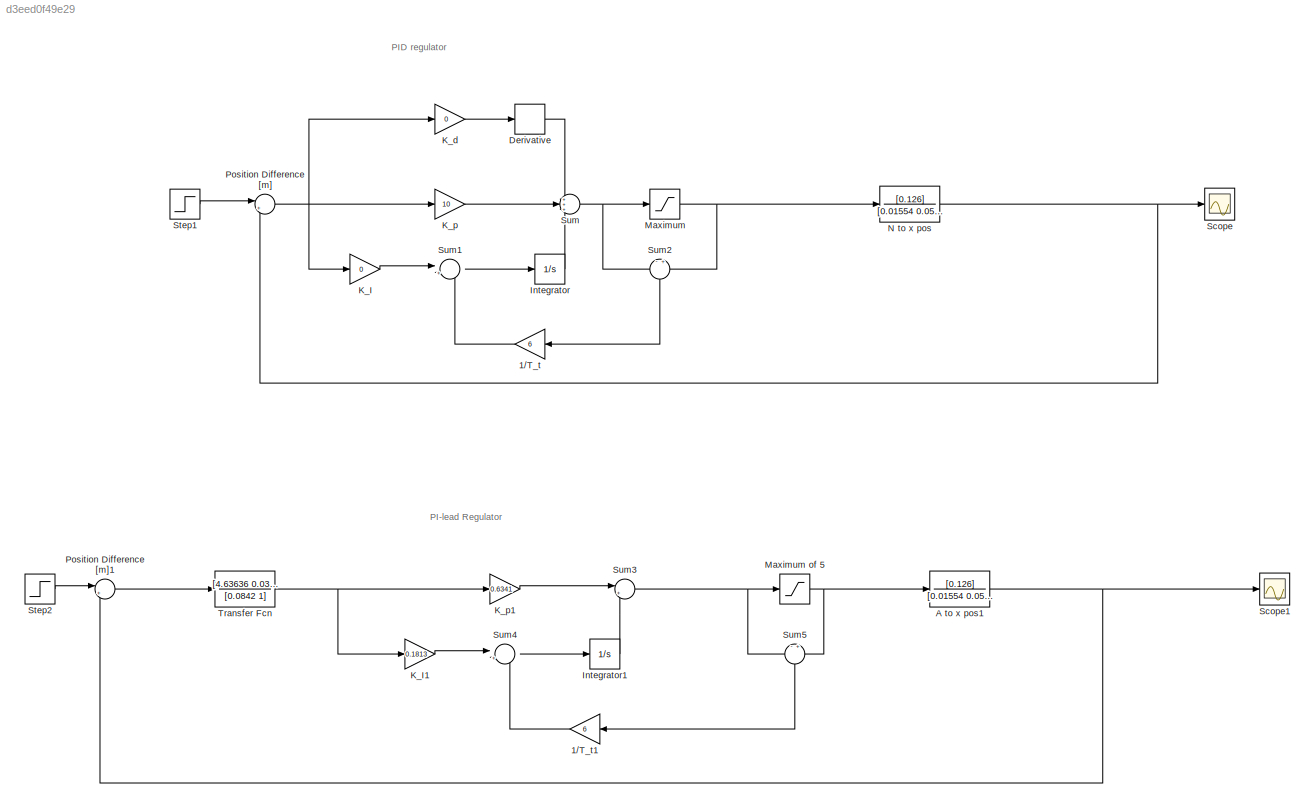
MODEL slx_d3eed0f49e29
KIND model
CONFIG AbsTol = auto
CONFIG EnableMultiTasking = off
CONFIG FixedStep = auto
CONFIG MaxStep = auto
CONFIG MinStep = auto
CONFIG RelTol = 1e-3
CONFIG SampleTimeConstraint = Unconstrained
CONFIG SolverName = VariableStepAuto
CONFIG StartTime = 0.0
CONFIG StopTime = 10
BLOCK [Gain] 1//T_t
  Gain = 6
  NameLocation = top
BLOCK [Gain] 1//T_t1
  Gain = 6
  NameLocation = top
BLOCK [TransferFcn] A to x pos1
  Denominator = [0.01554 0.05341 0]
  Numerator = [0.126]
BLOCK [Derivative] Derivative
BLOCK [Integrator] Integrator
  Ports = [1, 1]
BLOCK [Integrator] Integrator1
  Ports = [1, 1]
BLOCK [Gain] K_I
  Gain = 0
BLOCK [Gain] K_I1
  Gain = 0.1813
BLOCK [Gain] K_d
  Gain = 0
BLOCK [Gain] K_p
  Gain = 10
BLOCK [Gain] K_p1
  Gain = 0.6341
BLOCK [Saturate] Maximum
  LowerLimit = -100000
  UpperLimit = 100000
BLOCK [Saturate] Maximum of 5
  LowerLimit = -5
  UpperLimit = 5
BLOCK [TransferFcn] N to x pos
  Denominator = [0.01554 0.05341 0]
  Numerator = [0.126]
BLOCK [Sum] Position Difference [m]
  Inputs = |+-
  Ports = [2, 1]
BLOCK [Sum] Position Difference [m]1
  Inputs = |+-
  Ports = [2, 1]
BLOCK [Scope] Scope
  Floating = off
  NumInputPorts = 1
  Ports = [1]
  ScopeSpecificationString = Simulink.scopes.TimeScopeBlockCfg('CurrentConfiguration', extmgr.ConfigurationSet(extmgr.Configuration('Core','General UI',true),extmgr.Configuration('Core','Source UI',true),extmgr.Configuration('Sources','WiredSimulink',true),extmgr.Configuration('Visuals','Time Domain',true,'SerializedDisplays',{struct('MinYLimReal','-1.00000','MaxYLimReal','1.00000','YLabelReal','','MinYLimMag','0.00000','MaxY...<+1363ch>
BLOCK [Scope] Scope1
  Floating = off
  NumInputPorts = 1
  Ports = [1]
  ScopeSpecificationString = Simulink.scopes.TimeScopeBlockCfg('CurrentConfiguration', extmgr.ConfigurationSet(extmgr.Configuration('Core','General UI',true),extmgr.Configuration('Core','Source UI',true),extmgr.Configuration('Sources','WiredSimulink',true,'DataLoggingVariableName','ScopeData1'),extmgr.Configuration('Visuals','Time Domain',true,'SerializedDisplays',{struct('MinYLimReal','-0.12127','MaxYLimReal','1.09146','YLab...<+1403ch>
BLOCK [Step] Step1
  SampleTime = 0
  Time = 0
BLOCK [Step] Step2
  SampleTime = 0
  Time = 0
BLOCK [Sum] Sum
  Inputs = +++
  Ports = [3, 1]
BLOCK [Sum] Sum1
  Inputs = |++
  Ports = [2, 1]
BLOCK [Sum] Sum2
  Commented = on
  Inputs = -+
  NameLocation = left
  Ports = [2, 1]
BLOCK [Sum] Sum3
  Inputs = |++
  Ports = [2, 1]
BLOCK [Sum] Sum4
  Inputs = |++
  Ports = [2, 1]
BLOCK [Sum] Sum5
  Commented = on
  Inputs = -+
  NameLocation = left
  Ports = [2, 1]
BLOCK [TransferFcn] Transfer Fcn
  Denominator = [0.0842 1]
  Numerator = [4.63636 0.03333]
ANNOTATION (root): PI-lead Regulator
ANNOTATION (root): PID regulator
LINE 1//T_t1:1 -> Sum4:2
LINE 1//T_t:1 -> Sum1:2
NET A to x pos1:1 -> Position Difference [m]1:2, Scope1:1
LINE Derivative:1 -> Sum:1
LINE Integrator1:1 -> Sum3:2
LINE Integrator:1 -> Sum:3
LINE K_I1:1 -> Sum4:1
LINE K_I:1 -> Sum1:1
LINE K_d:1 -> Derivative:1
LINE K_p1:1 -> Sum3:1
LINE K_p:1 -> Sum:2
NET Maximum of 5:1 -> A to x pos1:1, Sum5:2
NET Maximum:1 -> N to x pos:1, Sum2:2
NET N to x pos:1 -> Position Difference [m]:2, Scope:1
LINE Position Difference [m]1:1 -> Transfer Fcn:1
NET Position Difference [m]:1 -> K_I:1, K_d:1, K_p:1
LINE Step1:1 -> Position Difference [m]:1
LINE Step2:1 -> Position Difference [m]1:1
LINE Sum1:1 -> Integrator:1
LINE Sum2:1 -> 1//T_t:1
NET Sum3:1 -> Maximum of 5:1, Sum5:1
LINE Sum4:1 -> Integrator1:1
LINE Sum5:1 -> 1//T_t1:1
NET Sum:1 -> Maximum:1, Sum2:1
NET Transfer Fcn:1 -> K_I1:1, K_p1:1
note: NET lines group one-source signal fan-out (src -> all destinations, sorted); 1:1 wires keep LINE
